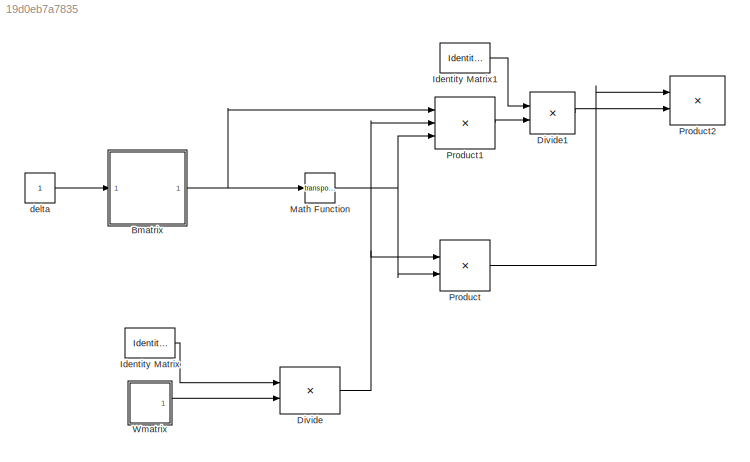
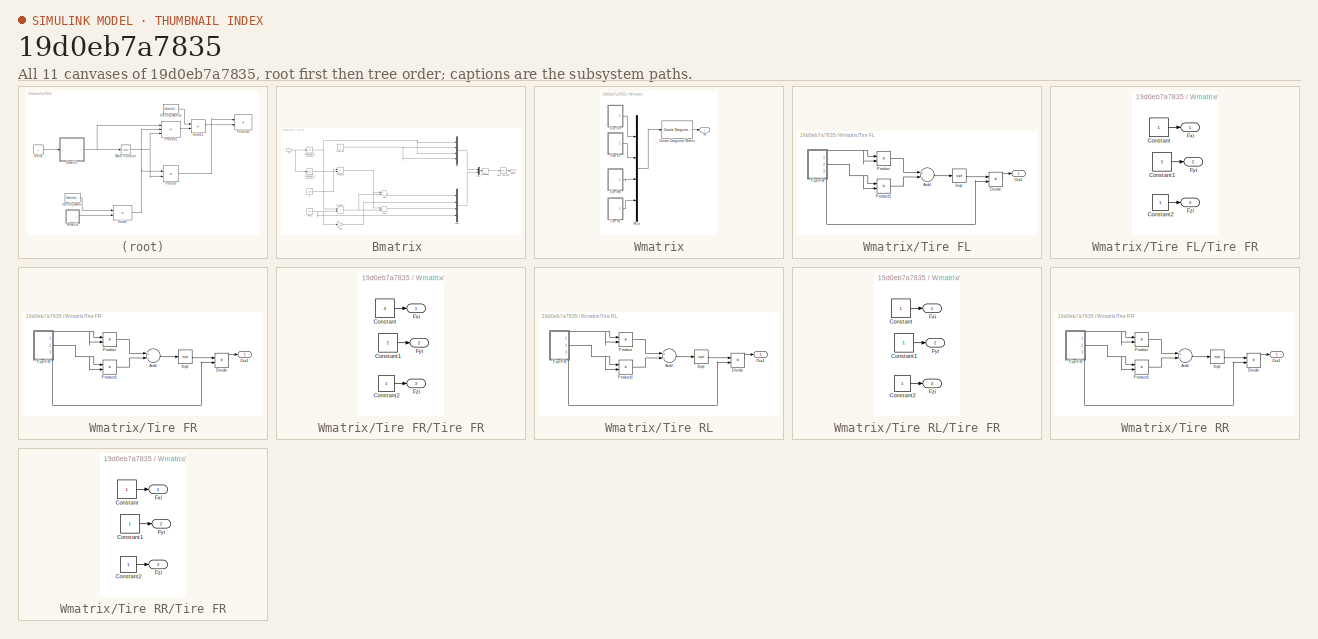
[diagram: thumbnail index - all 11 canvases of the model, root first then tree order]
MODEL slx_19d0eb7a7835
KIND model
CONFIG AbsTol = auto
CONFIG FixedStep = auto
CONFIG MaxStep = auto
CONFIG MinStep = auto
CONFIG RelTol = 1e-3
CONFIG SampleTimeConstraint = Unconstrained
CONFIG Solver = VariableStepAuto
CONFIG SolverMode = Auto
CONFIG SolverName = VariableStepAuto
CONFIG StartTime = 0.0
CONFIG StopTime = 1
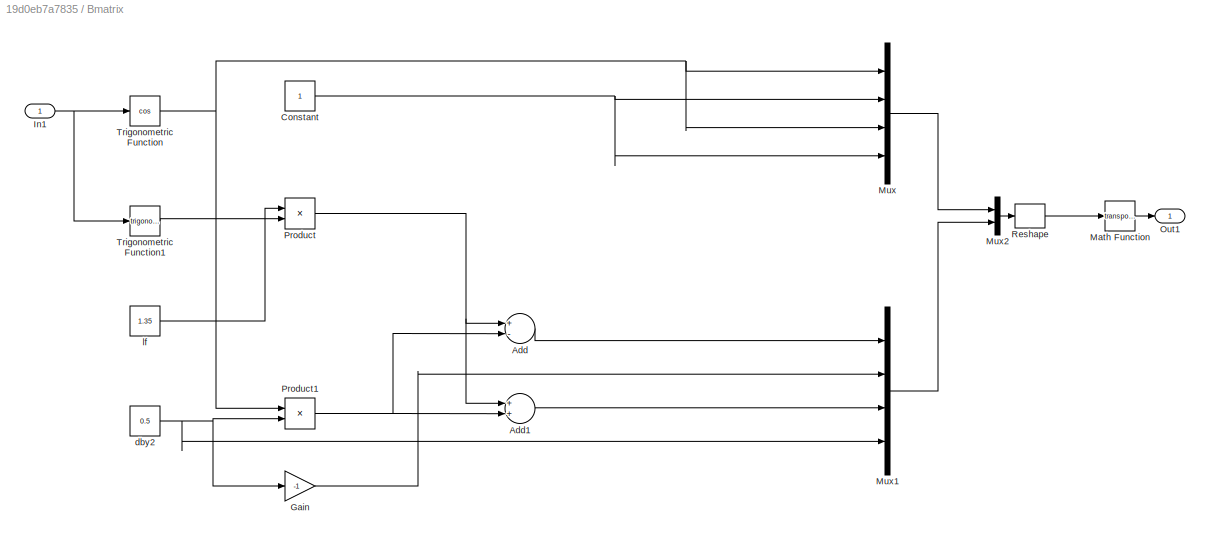
BLOCK [SubSystem] Bmatrix 
  Ports = [1, 1]
  RequestExecContextInheritance = off
  Variant = off
BLOCK [Sum] Bmatrix /Add
  InputSameDT = off
  Inputs = +-
  OutDataTypeStr = Inherit: Inherit via internal rule
  Ports = [2, 1]
  SaturateOnIntegerOverflow = off
BLOCK [Sum] Bmatrix /Add1
  InputSameDT = off
  OutDataTypeStr = Inherit: Inherit via internal rule
  Ports = [2, 1]
  SaturateOnIntegerOverflow = off
BLOCK [Constant] Bmatrix /Constant
BLOCK [Gain] Bmatrix /Gain
  Gain = -1
  OutDataTypeStr = Inherit: Inherit via internal rule
  ParamDataTypeStr = Inherit: Inherit via internal rule
  SaturateOnIntegerOverflow = off
BLOCK [Inport] Bmatrix /In1
  IconDisplay = Port number
BLOCK [Math] Bmatrix /Math Function
  Operator = transpose
  Ports = [1, 1]
BLOCK [Mux] Bmatrix /Mux
  DisplayOption = bar
  Ports = [4, 1]
BLOCK [Mux] Bmatrix /Mux1
  DisplayOption = bar
  Ports = [4, 1]
BLOCK [Mux] Bmatrix /Mux2
  DisplayOption = bar
  Inputs = 2
  Ports = [2, 1]
BLOCK [Outport] Bmatrix /Out1
  IconDisplay = Port number
BLOCK [Product] Bmatrix /Product
  InputSameDT = off
  OutDataTypeStr = Inherit: Inherit via internal rule
  Ports = [2, 1]
  RndMeth = Floor
  SaturateOnIntegerOverflow = off
BLOCK [Product] Bmatrix /Product1
  InputSameDT = off
  OutDataTypeStr = Inherit: Inherit via internal rule
  Ports = [2, 1]
  RndMeth = Floor
  SaturateOnIntegerOverflow = off
BLOCK [Reshape] Bmatrix /Reshape
  OutputDimensionality = Customize
  OutputDimensions = [4,2]
  Ports = [1, 1]
BLOCK [Trigonometry] Bmatrix /Trigonometric Function
  Operator = cos
  Ports = [1, 1]
BLOCK [Trigonometry] Bmatrix /Trigonometric Function1
  Ports = [1, 1]
BLOCK [Constant] Bmatrix /dby2
  Value = 0.5
BLOCK [Constant] Bmatrix /lf
  Value = 1.35
BLOCK [Product] Divide
  InputSameDT = off
  Inputs = */
  Multiplication = Matrix(*)
  OutDataTypeStr = Inherit: Inherit via internal rule
  Ports = [2, 1]
  RndMeth = Floor
  SaturateOnIntegerOverflow = off
BLOCK [Product] Divide1
  InputSameDT = off
  Inputs = */
  Multiplication = Matrix(*)
  OutDataTypeStr = Inherit: Inherit via internal rule
  Ports = [2, 1]
  RndMeth = Floor
  SaturateOnIntegerOverflow = off
BLOCK [Reference] Identity Matrix  REF=dspmtrx3/Identity Matrix
  Ports = [0, 1]
  SourceBlock = dspmtrx3/Identity Matrix
  SourceType = Identity Matrix
BLOCK [Reference] Identity Matrix1  REF=dspmtrx3/Identity Matrix
  Ports = [0, 1]
  SourceBlock = dspmtrx3/Identity Matrix
  SourceType = Identity Matrix
BLOCK [Math] Math Function
  Operator = transpose
  Ports = [1, 1]
BLOCK [Product] Product
  InputSameDT = off
  Multiplication = Matrix(*)
  OutDataTypeStr = Inherit: Inherit via internal rule
  Ports = [2, 1]
  RndMeth = Floor
  SaturateOnIntegerOverflow = off
BLOCK [Product] Product1
  InputSameDT = off
  Inputs = 3
  Multiplication = Matrix(*)
  OutDataTypeStr = Inherit: Inherit via internal rule
  Ports = [3, 1]
  RndMeth = Floor
  SaturateOnIntegerOverflow = off
BLOCK [Product] Product2
  InputSameDT = off
  Multiplication = Matrix(*)
  OutDataTypeStr = Inherit: Inherit via internal rule
  Ports = [2, 1]
  RndMeth = Floor
  SaturateOnIntegerOverflow = off
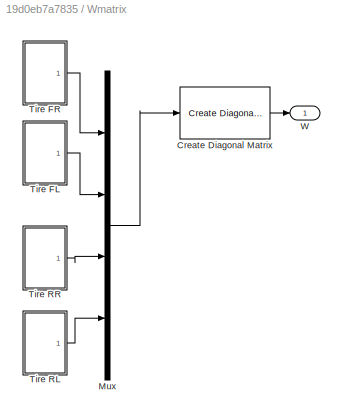
BLOCK [SubSystem] Wmatrix
  Ports = [0, 1]
  RequestExecContextInheritance = off
  Variant = off
BLOCK [Reference] Wmatrix/Create Diagonal Matrix  REF=dspmtrx3/Create Diagonal
Matrix
  Ports = [1, 1]
  SourceBlock = dspmtrx3/Create Diagonal\nMatrix
  SourceType = Create Diagonal Matrix
BLOCK [Mux] Wmatrix/Mux
  DisplayOption = bar
  Ports = [4, 1]
BLOCK [SubSystem] Wmatrix/Tire FL
  Ports = [0, 1]
  RequestExecContextInheritance = off
  Variant = off
BLOCK [Sum] Wmatrix/Tire FL/Add
  InputSameDT = off
  OutDataTypeStr = Inherit: Inherit via internal rule
  Ports = [2, 1]
  SaturateOnIntegerOverflow = off
BLOCK [Product] Wmatrix/Tire FL/Divide
  InputSameDT = off
  Inputs = */
  OutDataTypeStr = Inherit: Inherit via internal rule
  Ports = [2, 1]
  RndMeth = Floor
  SaturateOnIntegerOverflow = off
BLOCK [Outport] Wmatrix/Tire FL/Out1
  IconDisplay = Port number
BLOCK [Product] Wmatrix/Tire FL/Product
  InputSameDT = off
  OutDataTypeStr = Inherit: Inherit via internal rule
  Ports = [2, 1]
  RndMeth = Floor
  SaturateOnIntegerOverflow = off
BLOCK [Product] Wmatrix/Tire FL/Product1
  InputSameDT = off
  OutDataTypeStr = Inherit: Inherit via internal rule
  Ports = [2, 1]
  RndMeth = Floor
  SaturateOnIntegerOverflow = off
BLOCK [Sqrt] Wmatrix/Tire FL/Sqrt
BLOCK [SubSystem] Wmatrix/Tire FL/Tire FR
  Ports = [0, 3]
  RequestExecContextInheritance = off
  Variant = off
BLOCK [Constant] Wmatrix/Tire FL/Tire FR/Constant
BLOCK [Constant] Wmatrix/Tire FL/Tire FR/Constant1
  Value = 3
BLOCK [Constant] Wmatrix/Tire FL/Tire FR/Constant2
BLOCK [Outport] Wmatrix/Tire FL/Tire FR/Fxi
  IconDisplay = Port number
BLOCK [Outport] Wmatrix/Tire FL/Tire FR/Fyi
  IconDisplay = Port number
  Port = 2
BLOCK [Outport] Wmatrix/Tire FL/Tire FR/Fzi
  IconDisplay = Port number
  Port = 3
BLOCK [SubSystem] Wmatrix/Tire FR
  Ports = [0, 1]
  RequestExecContextInheritance = off
  Variant = off
BLOCK [Sum] Wmatrix/Tire FR/Add
  InputSameDT = off
  OutDataTypeStr = Inherit: Inherit via internal rule
  Ports = [2, 1]
  SaturateOnIntegerOverflow = off
BLOCK [Product] Wmatrix/Tire FR/Divide
  InputSameDT = off
  Inputs = */
  OutDataTypeStr = Inherit: Inherit via internal rule
  Ports = [2, 1]
  RndMeth = Floor
  SaturateOnIntegerOverflow = off
BLOCK [Outport] Wmatrix/Tire FR/Out1
  IconDisplay = Port number
BLOCK [Product] Wmatrix/Tire FR/Product
  InputSameDT = off
  OutDataTypeStr = Inherit: Inherit via internal rule
  Ports = [2, 1]
  RndMeth = Floor
  SaturateOnIntegerOverflow = off
BLOCK [Product] Wmatrix/Tire FR/Product1
  InputSameDT = off
  OutDataTypeStr = Inherit: Inherit via internal rule
  Ports = [2, 1]
  RndMeth = Floor
  SaturateOnIntegerOverflow = off
BLOCK [Sqrt] Wmatrix/Tire FR/Sqrt
BLOCK [SubSystem] Wmatrix/Tire FR/Tire FR
  Ports = [0, 3]
  RequestExecContextInheritance = off
  Variant = off
BLOCK [Constant] Wmatrix/Tire FR/Tire FR/Constant
  Value = 4
BLOCK [Constant] Wmatrix/Tire FR/Tire FR/Constant1
  Value = 2
BLOCK [Constant] Wmatrix/Tire FR/Tire FR/Constant2
BLOCK [Outport] Wmatrix/Tire FR/Tire FR/Fxi
  IconDisplay = Port number
BLOCK [Outport] Wmatrix/Tire FR/Tire FR/Fyi
  IconDisplay = Port number
  Port = 2
BLOCK [Outport] Wmatrix/Tire FR/Tire FR/Fzi
  IconDisplay = Port number
  Port = 3
BLOCK [SubSystem] Wmatrix/Tire RL
  Ports = [0, 1]
  RequestExecContextInheritance = off
  Variant = off
BLOCK [Sum] Wmatrix/Tire RL/Add
  InputSameDT = off
  OutDataTypeStr = Inherit: Inherit via internal rule
  Ports = [2, 1]
  SaturateOnIntegerOverflow = off
BLOCK [Product] Wmatrix/Tire RL/Divide
  InputSameDT = off
  Inputs = */
  OutDataTypeStr = Inherit: Inherit via internal rule
  Ports = [2, 1]
  RndMeth = Floor
  SaturateOnIntegerOverflow = off
BLOCK [Outport] Wmatrix/Tire RL/Out1
  IconDisplay = Port number
BLOCK [Product] Wmatrix/Tire RL/Product
  InputSameDT = off
  OutDataTypeStr = Inherit: Inherit via internal rule
  Ports = [2, 1]
  RndMeth = Floor
  SaturateOnIntegerOverflow = off
BLOCK [Product] Wmatrix/Tire RL/Product1
  InputSameDT = off
  OutDataTypeStr = Inherit: Inherit via internal rule
  Ports = [2, 1]
  RndMeth = Floor
  SaturateOnIntegerOverflow = off
BLOCK [Sqrt] Wmatrix/Tire RL/Sqrt
BLOCK [SubSystem] Wmatrix/Tire RL/Tire FR
  Ports = [0, 3]
  RequestExecContextInheritance = off
  Variant = off
BLOCK [Constant] Wmatrix/Tire RL/Tire FR/Constant
BLOCK [Constant] Wmatrix/Tire RL/Tire FR/Constant1
BLOCK [Constant] Wmatrix/Tire RL/Tire FR/Constant2
BLOCK [Outport] Wmatrix/Tire RL/Tire FR/Fxi
  IconDisplay = Port number
BLOCK [Outport] Wmatrix/Tire RL/Tire FR/Fyi
  IconDisplay = Port number
  Port = 2
BLOCK [Outport] Wmatrix/Tire RL/Tire FR/Fzi
  IconDisplay = Port number
  Port = 3
BLOCK [SubSystem] Wmatrix/Tire RR
  Ports = [0, 1]
  RequestExecContextInheritance = off
  Variant = off
BLOCK [Sum] Wmatrix/Tire RR/Add
  InputSameDT = off
  OutDataTypeStr = Inherit: Inherit via internal rule
  Ports = [2, 1]
  SaturateOnIntegerOverflow = off
BLOCK [Product] Wmatrix/Tire RR/Divide
  InputSameDT = off
  Inputs = */
  OutDataTypeStr = Inherit: Inherit via internal rule
  Ports = [2, 1]
  RndMeth = Floor
  SaturateOnIntegerOverflow = off
BLOCK [Outport] Wmatrix/Tire RR/Out1
  IconDisplay = Port number
BLOCK [Product] Wmatrix/Tire RR/Product
  InputSameDT = off
  OutDataTypeStr = Inherit: Inherit via internal rule
  Ports = [2, 1]
  RndMeth = Floor
  SaturateOnIntegerOverflow = off
BLOCK [Product] Wmatrix/Tire RR/Product1
  InputSameDT = off
  OutDataTypeStr = Inherit: Inherit via internal rule
  Ports = [2, 1]
  RndMeth = Floor
  SaturateOnIntegerOverflow = off
BLOCK [Sqrt] Wmatrix/Tire RR/Sqrt
BLOCK [SubSystem] Wmatrix/Tire RR/Tire FR
  Ports = [0, 3]
  RequestExecContextInheritance = off
  Variant = off
BLOCK [Constant] Wmatrix/Tire RR/Tire FR/Constant
BLOCK [Constant] Wmatrix/Tire RR/Tire FR/Constant1
BLOCK [Constant] Wmatrix/Tire RR/Tire FR/Constant2
BLOCK [Outport] Wmatrix/Tire RR/Tire FR/Fxi
  IconDisplay = Port number
BLOCK [Outport] Wmatrix/Tire RR/Tire FR/Fyi
  IconDisplay = Port number
  Port = 2
BLOCK [Outport] Wmatrix/Tire RR/Tire FR/Fzi
  IconDisplay = Port number
  Port = 3
BLOCK [Outport] Wmatrix/W
  IconDisplay = Port number
BLOCK [Constant] delta
LINE Bmatrix /Add1:1 -> Bmatrix /Mux1:3
LINE Bmatrix /Add:1 -> Bmatrix /Mux1:1
NET Bmatrix /Constant:1 -> Bmatrix /Mux:2, Bmatrix /Mux:4
LINE Bmatrix /Gain:1 -> Bmatrix /Mux1:2
NET Bmatrix /In1:1 -> Bmatrix /Trigonometric Function1:1, Bmatrix /Trigonometric Function:1
LINE Bmatrix /Math Function:1 -> Bmatrix /Out1:1
LINE Bmatrix /Mux1:1 -> Bmatrix /Mux2:2
LINE Bmatrix /Mux2:1 -> Bmatrix /Reshape:1
LINE Bmatrix /Mux:1 -> Bmatrix /Mux2:1
NET Bmatrix /Product1:1 -> Bmatrix /Add1:2, Bmatrix /Add:2
NET Bmatrix /Product:1 -> Bmatrix /Add1:1, Bmatrix /Add:1
LINE Bmatrix /Reshape:1 -> Bmatrix /Math Function:1
LINE Bmatrix /Trigonometric Function1:1 -> Bmatrix /Product:2
NET Bmatrix /Trigonometric Function:1 -> Bmatrix /Mux:1, Bmatrix /Mux:3, Bmatrix /Product1:1
NET Bmatrix /dby2:1 -> Bmatrix /Gain:1, Bmatrix /Mux1:4, Bmatrix /Product1:2
LINE Bmatrix /lf:1 -> Bmatrix /Product:1
NET Bmatrix :1 -> Math Function:1, Product1:1
LINE Divide1:1 -> Product2:2
NET Divide:1 -> Product1:2, Product:1
LINE Identity Matrix1:1 -> Divide1:1
LINE Identity Matrix:1 -> Divide:1
NET Math Function:1 -> Product1:3, Product:2
LINE Product1:1 -> Divide1:2
LINE Product:1 -> Product2:1
LINE Wmatrix/Create Diagonal Matrix:1 -> Wmatrix/W:1
LINE Wmatrix/Mux:1 -> Wmatrix/Create Diagonal Matrix:1
LINE Wmatrix/Tire FL/Add:1 -> Wmatrix/Tire FL/Sqrt:1
LINE Wmatrix/Tire FL/Divide:1 -> Wmatrix/Tire FL/Out1:1
LINE Wmatrix/Tire FL/Product1:1 -> Wmatrix/Tire FL/Add:2
LINE Wmatrix/Tire FL/Product:1 -> Wmatrix/Tire FL/Add:1
LINE Wmatrix/Tire FL/Sqrt:1 -> Wmatrix/Tire FL/Divide:1
LINE Wmatrix/Tire FL/Tire FR/Constant1:1 -> Wmatrix/Tire FL/Tire FR/Fyi:1
LINE Wmatrix/Tire FL/Tire FR/Constant2:1 -> Wmatrix/Tire FL/Tire FR/Fzi:1
LINE Wmatrix/Tire FL/Tire FR/Constant:1 -> Wmatrix/Tire FL/Tire FR/Fxi:1
NET Wmatrix/Tire FL/Tire FR:1 -> Wmatrix/Tire FL/Product:1, Wmatrix/Tire FL/Product:2
NET Wmatrix/Tire FL/Tire FR:2 -> Wmatrix/Tire FL/Product1:1, Wmatrix/Tire FL/Product1:2
LINE Wmatrix/Tire FL/Tire FR:3 -> Wmatrix/Tire FL/Divide:2
LINE Wmatrix/Tire FL:1 -> Wmatrix/Mux:2
LINE Wmatrix/Tire FR/Add:1 -> Wmatrix/Tire FR/Sqrt:1
LINE Wmatrix/Tire FR/Divide:1 -> Wmatrix/Tire FR/Out1:1
LINE Wmatrix/Tire FR/Product1:1 -> Wmatrix/Tire FR/Add:2
LINE Wmatrix/Tire FR/Product:1 -> Wmatrix/Tire FR/Add:1
LINE Wmatrix/Tire FR/Sqrt:1 -> Wmatrix/Tire FR/Divide:1
LINE Wmatrix/Tire FR/Tire FR/Constant1:1 -> Wmatrix/Tire FR/Tire FR/Fyi:1
LINE Wmatrix/Tire FR/Tire FR/Constant2:1 -> Wmatrix/Tire FR/Tire FR/Fzi:1
LINE Wmatrix/Tire FR/Tire FR/Constant:1 -> Wmatrix/Tire FR/Tire FR/Fxi:1
NET Wmatrix/Tire FR/Tire FR:1 -> Wmatrix/Tire FR/Product:1, Wmatrix/Tire FR/Product:2
NET Wmatrix/Tire FR/Tire FR:2 -> Wmatrix/Tire FR/Product1:1, Wmatrix/Tire FR/Product1:2
LINE Wmatrix/Tire FR/Tire FR:3 -> Wmatrix/Tire FR/Divide:2
LINE Wmatrix/Tire FR:1 -> Wmatrix/Mux:1
LINE Wmatrix/Tire RL/Add:1 -> Wmatrix/Tire RL/Sqrt:1
LINE Wmatrix/Tire RL/Divide:1 -> Wmatrix/Tire RL/Out1:1
LINE Wmatrix/Tire RL/Product1:1 -> Wmatrix/Tire RL/Add:2
LINE Wmatrix/Tire RL/Product:1 -> Wmatrix/Tire RL/Add:1
LINE Wmatrix/Tire RL/Sqrt:1 -> Wmatrix/Tire RL/Divide:1
LINE Wmatrix/Tire RL/Tire FR/Constant1:1 -> Wmatrix/Tire RL/Tire FR/Fyi:1
LINE Wmatrix/Tire RL/Tire FR/Constant2:1 -> Wmatrix/Tire RL/Tire FR/Fzi:1
LINE Wmatrix/Tire RL/Tire FR/Constant:1 -> Wmatrix/Tire RL/Tire FR/Fxi:1
NET Wmatrix/Tire RL/Tire FR:1 -> Wmatrix/Tire RL/Product:1, Wmatrix/Tire RL/Product:2
NET Wmatrix/Tire RL/Tire FR:2 -> Wmatrix/Tire RL/Product1:1, Wmatrix/Tire RL/Product1:2
LINE Wmatrix/Tire RL/Tire FR:3 -> Wmatrix/Tire RL/Divide:2
LINE Wmatrix/Tire RL:1 -> Wmatrix/Mux:4
LINE Wmatrix/Tire RR/Add:1 -> Wmatrix/Tire RR/Sqrt:1
LINE Wmatrix/Tire RR/Divide:1 -> Wmatrix/Tire RR/Out1:1
LINE Wmatrix/Tire RR/Product1:1 -> Wmatrix/Tire RR/Add:2
LINE Wmatrix/Tire RR/Product:1 -> Wmatrix/Tire RR/Add:1
LINE Wmatrix/Tire RR/Sqrt:1 -> Wmatrix/Tire RR/Divide:1
LINE Wmatrix/Tire RR/Tire FR/Constant1:1 -> Wmatrix/Tire RR/Tire FR/Fyi:1
LINE Wmatrix/Tire RR/Tire FR/Constant2:1 -> Wmatrix/Tire RR/Tire FR/Fzi:1
LINE Wmatrix/Tire RR/Tire FR/Constant:1 -> Wmatrix/Tire RR/Tire FR/Fxi:1
NET Wmatrix/Tire RR/Tire FR:1 -> Wmatrix/Tire RR/Product:1, Wmatrix/Tire RR/Product:2
NET Wmatrix/Tire RR/Tire FR:2 -> Wmatrix/Tire RR/Product1:1, Wmatrix/Tire RR/Product1:2
LINE Wmatrix/Tire RR/Tire FR:3 -> Wmatrix/Tire RR/Divide:2
LINE Wmatrix/Tire RR:1 -> Wmatrix/Mux:3
LINE Wmatrix:1 -> Divide:2
LINE delta:1 -> Bmatrix :1
note: NET lines group one-source signal fan-out (src -> all destinations, sorted); 1:1 wires keep LINE
